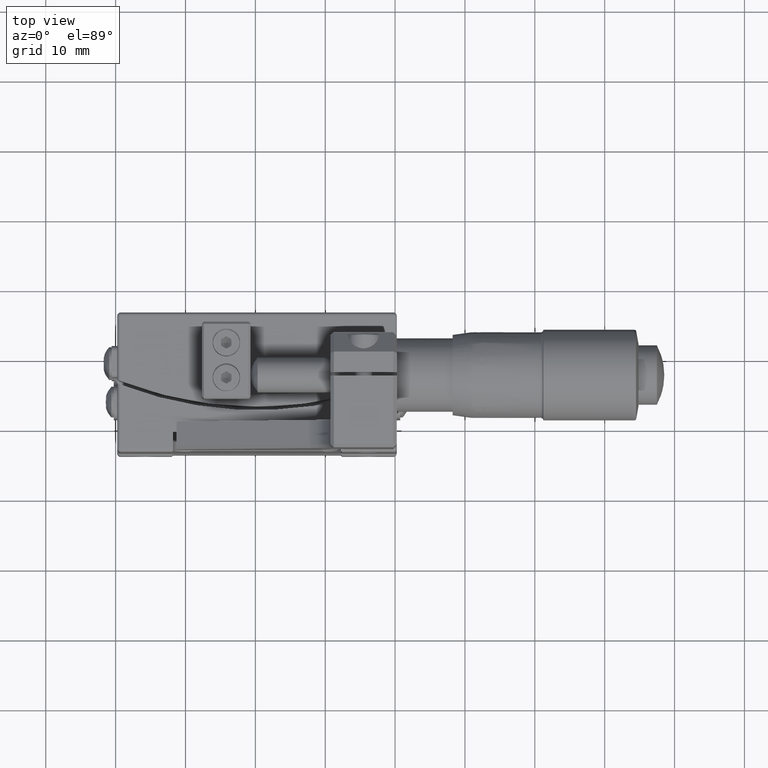
[diagram: clean part render]
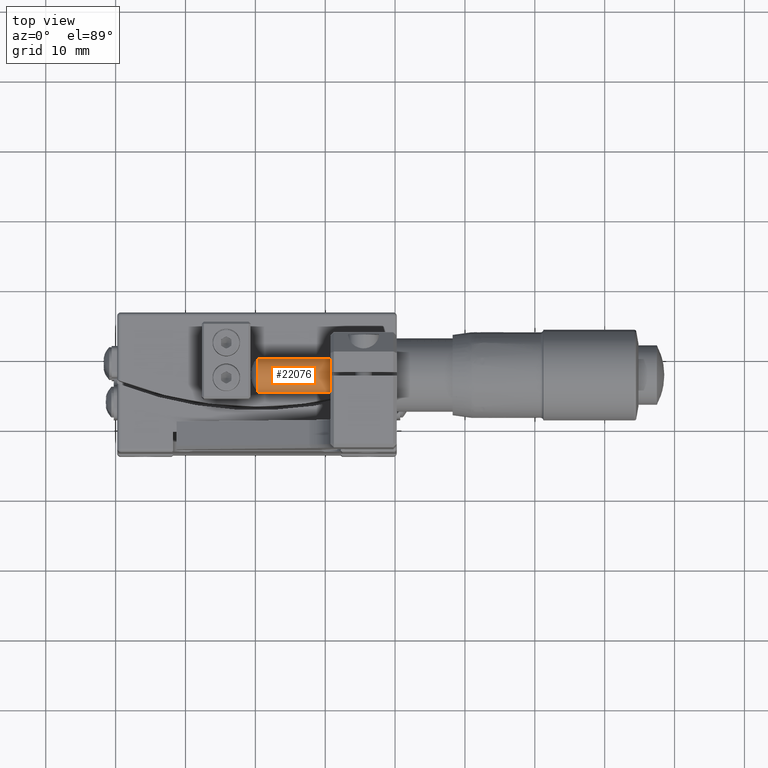
[diagram: same view with one face highlighted and labeled with its STEP entity id]
A machine part, top view. The second image highlights one B-rep face of the part: STEP entity #22076.
In plain terms, the highlighted cylindrical surface (edge-blend (fillet) strip) has radius 2.5 mm, axis along (-1, -0, 0).
Its self-contained STEP definition (entity closure, byte-faithful):
#293 = DIRECTION ( 'NONE',  ( -1.000000000000000000, -4.747189213155479788E-16, 5.951981081258750574E-15 ) ) ;
#411 = CARTESIAN_POINT ( 'NONE',  ( 10.73052097740846023, -5.280891636519420729, 26.42916343623365094 ) ) ;
#498 = VECTOR ( 'NONE', #40263, 1000.000000000000000 ) ;
#2802 = DIRECTION ( 'NONE',  ( -1.886511780124776926E-15, -0.9510565162951497564, -0.3090169943749594972 ) ) ;
#4088 = CARTESIAN_POINT ( 'NONE',  ( 0.3305209774086594887, -0.5256090550436650632, 27.97424840810845126 ) ) ;
#4481 = AXIS2_PLACEMENT_3D ( 'NONE', #37323, #32243, #24422 ) ;
#4964 = DIRECTION ( 'NONE',  ( -1.000000000000000000, -7.837354722295989526E-30, 6.106226608968620814E-15 ) ) ;
#5474 = LINE ( 'NONE', #21900, #52916 ) ;
#7059 = CIRCLE ( 'NONE', #4481, 2.500000000000000888 ) ;
#7576 = ORIENTED_EDGE ( 'NONE', *, *, #31642, .F. ) ;
#11746 = EDGE_CURVE ( 'NONE', #22348, #37996, #7059, .T. ) ;
#14402 = DIRECTION ( 'NONE',  ( -1.000000000000000000, -3.956523986474664823E-19, 6.106098053711440594E-15 ) ) ;
#18968 = CARTESIAN_POINT ( 'NONE',  ( 0.3305209774086549923, -2.903250345781554831, 27.20170592217110084 ) ) ;
#20222 = VERTEX_POINT ( 'NONE', #411 ) ;
#20374 = DIRECTION ( 'NONE',  ( -1.000000000000000000, 0.000000000000000000, 6.106226608968590048E-15 ) ) ;
#21299 = ORIENTED_EDGE ( 'NONE', *, *, #40783, .F. ) ;
#21900 = CARTESIAN_POINT ( 'NONE',  ( 26.33052097740825204, -5.280891636519400301, 26.42916343623349817 ) ) ;
#22076 = ADVANCED_FACE ( 'NONE', ( #24275 ), #49014, .T. ) ;
#22348 = VERTEX_POINT ( 'NONE', #22351 ) ;
#22351 = CARTESIAN_POINT ( 'NONE',  ( 0.3305209774086699803, -3.675792831718944775, 29.57934721290895297 ) ) ;
#23108 = VERTEX_POINT ( 'NONE', #50458 ) ;
#23586 = LINE ( 'NONE', #31684, #498 ) ;
#24275 = FACE_OUTER_BOUND ( 'NONE', #34560, .T. ) ;
#24422 = DIRECTION ( 'NONE',  ( -1.886511780124776926E-15, -0.9510565162951497564, -0.3090169943749594972 ) ) ;
#28061 = AXIS2_PLACEMENT_3D ( 'NONE', #40933, #293, #40411 ) ;
#28445 = CARTESIAN_POINT ( 'NONE',  ( 10.73052097740846023, -2.903250345781485109, 27.20170592217084859 ) ) ;
#30623 = ORIENTED_EDGE ( 'NONE', *, *, #31387, .T. ) ;
#31387 = EDGE_CURVE ( 'NONE', #23108, #37996, #23586, .T. ) ;
#31642 = EDGE_CURVE ( 'NONE', #20222, #45973, #5474, .T. ) ;
#31684 = CARTESIAN_POINT ( 'NONE',  ( 26.33052097740825204, -0.5256090550436530728, 27.97424840810829849 ) ) ;
#31703 = ORIENTED_EDGE ( 'NONE', *, *, #45581, .T. ) ;
#32243 = DIRECTION ( 'NONE',  ( -1.000000000000000000, -3.956523986474664823E-19, 6.106098053711440594E-15 ) ) ;
#33267 = DIRECTION ( 'NONE',  ( 0.000000000000000000, 1.000000000000000000, 0.000000000000000000 ) ) ;
#33885 = CIRCLE ( 'NONE', #36467, 2.500000000000000888 ) ;
#33910 = CARTESIAN_POINT ( 'NONE',  ( 0.3305209774086499963, -5.280891636519430499, 26.42916343623370068 ) ) ;
#34461 = AXIS2_PLACEMENT_3D ( 'NONE', #28445, #20374, #33267 ) ;
#34560 = EDGE_LOOP ( 'NONE', ( #31703, #30623, #48534, #21299, #7576 ) ) ;
#36467 = AXIS2_PLACEMENT_3D ( 'NONE', #18968, #14402, #2802 ) ;
#37323 = CARTESIAN_POINT ( 'NONE',  ( 0.3305209774086549923, -2.903250345781554831, 27.20170592217110084 ) ) ;
#37996 = VERTEX_POINT ( 'NONE', #4088 ) ;
#40263 = DIRECTION ( 'NONE',  ( -1.000000000000000000, -7.837354722295989526E-30, 6.106226608968620814E-15 ) ) ;
#40411 = DIRECTION ( 'NONE',  ( -1.387778780781445281E-15, -0.9510565162951495344, -0.3090169943749594972 ) ) ;
#40783 = EDGE_CURVE ( 'NONE', #45973, #22348, #33885, .T. ) ;
#40933 = CARTESIAN_POINT ( 'NONE',  ( 26.33052097740825204, -2.903250345781529962, 27.20170592217090189 ) ) ;
#43042 = CIRCLE ( 'NONE', #34461, 2.500000000000000000 ) ;
#45581 = EDGE_CURVE ( 'NONE', #20222, #23108, #43042, .T. ) ;
#45973 = VERTEX_POINT ( 'NONE', #33910 ) ;
#48534 = ORIENTED_EDGE ( 'NONE', *, *, #11746, .F. ) ;
#49014 = CYLINDRICAL_SURFACE ( 'NONE', #28061, 2.500000000000000888 ) ;
#50458 = CARTESIAN_POINT ( 'NONE',  ( 10.73052097740846023, -0.5256090550436729458, 27.97424840810845126 ) ) ;
#52916 = VECTOR ( 'NONE', #4964, 1000.000000000000000 ) ;